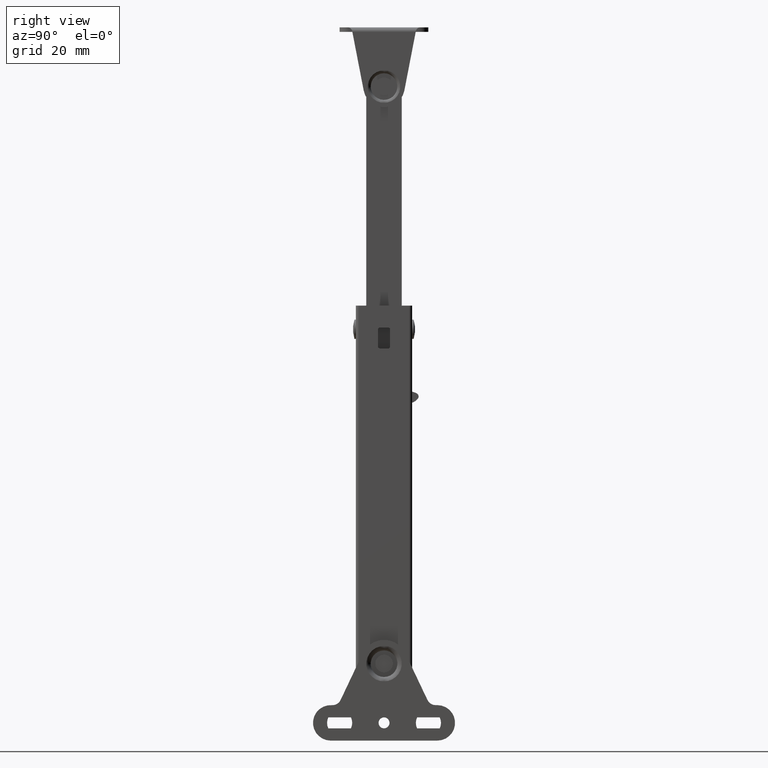
[diagram: clean part render]
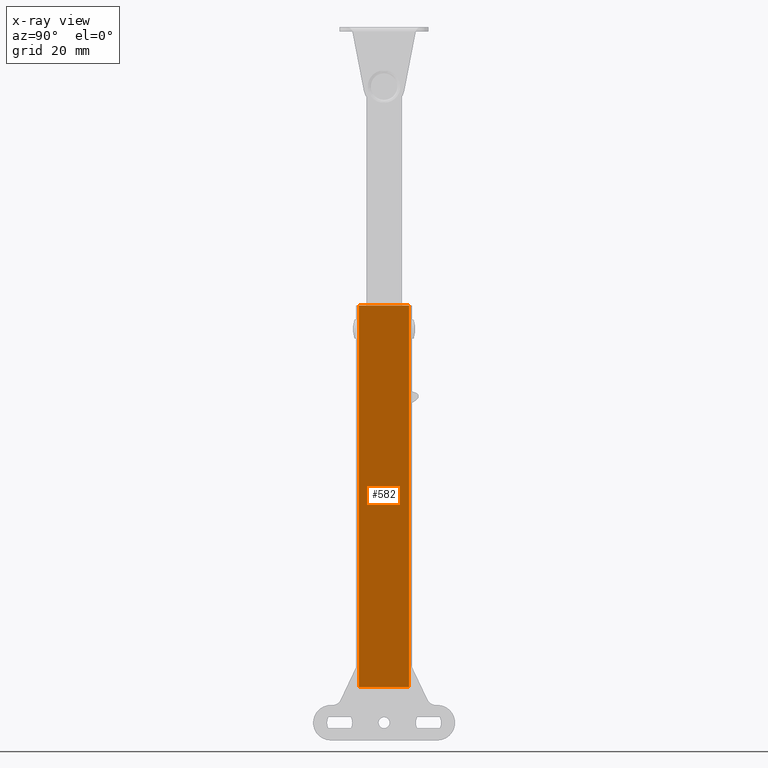
[diagram: x-ray — body ghosted, one internal face saturated and labeled with its STEP entity id]
A machine part, right view, then the same camera in x-ray: the body is ghosted and one INTERNAL B-rep face — a face not visible from any outside direction — is saturated and labeled: STEP entity #582.
In plain terms, the highlighted planar face has unit normal (1, 0, 0).
Its self-contained STEP definition (entity closure, byte-faithful):
#582=ADVANCED_FACE('',(#2305),#2304,.T.);
#2304=PLANE('',#3953);
#2305=FACE_OUTER_BOUND('',#3954,.T.);
#3950=CARTESIAN_POINT('',(-9.00000000000E+00,-1.02000000000E+01,1.31000000000E+02));
#3951=DIRECTION('',(1.00000000000E+00,0.00000000000E+00,0.00000000000E+00));
#3952=DIRECTION('',(0.00000000000E+00,0.00000000000E+00,-1.00000000000E+00));
#3953=AXIS2_PLACEMENT_3D('',#3950,#3951,#3952);
#3954=EDGE_LOOP('',(#4985,#4986,#4987,#4988));
#4985=ORIENTED_EDGE('',*,*,#5616,.F.);
#4986=ORIENTED_EDGE('',*,*,#5617,.F.);
#4987=ORIENTED_EDGE('',*,*,#5603,.T.);
#4988=ORIENTED_EDGE('',*,*,#5607,.T.);
#5603=EDGE_CURVE('',#8485,#8486,#8487,.T.);
#5607=EDGE_CURVE('',#8486,#8505,#8512,.T.);
#5616=EDGE_CURVE('',#8574,#8505,#8575,.T.);
#5617=EDGE_CURVE('',#8485,#8574,#8581,.T.);
#8485=VERTEX_POINT('',#10775);
#8486=VERTEX_POINT('',#10776);
#8487=LINE('',#10777,#10778);
#8505=VERTEX_POINT('',#10786);
#8512=LINE('',#10790,#10791);
#8574=VERTEX_POINT('',#10829);
#8575=LINE('',#10830,#10831);
#8581=LINE('',#10833,#10834);
#10775=CARTESIAN_POINT('',(-9.00000000000E+00,-8.50000000000E+00,-8.00000000000E+00));
#10776=CARTESIAN_POINT('',(-9.00000000000E+00,8.50000000000E+00,-8.00000000000E+00));
#10777=CARTESIAN_POINT('',(-9.00000000000E+00,-8.50000000000E+00,-8.00000000000E+00));
#10778=VECTOR('',#10779,1.70000000000E+01);
#10779=DIRECTION('',(0.00000000000E+00,1.00000000000E+00,0.00000000000E+00));
#10786=CARTESIAN_POINT('',(-9.00000000000E+00,8.50000000000E+00,1.21000000000E+02));
#10790=CARTESIAN_POINT('',(-9.00000000000E+00,8.50000000000E+00,-8.00000000000E+00));
#10791=VECTOR('',#10792,1.29000000000E+02);
#10792=DIRECTION('',(0.00000000000E+00,0.00000000000E+00,1.00000000000E+00));
#10829=CARTESIAN_POINT('',(-9.00000000000E+00,-8.50000000000E+00,1.21000000000E+02));
#10830=CARTESIAN_POINT('',(-9.00000000000E+00,-8.50000000000E+00,1.21000000000E+02));
#10831=VECTOR('',#10832,1.70000000000E+01);
#10832=DIRECTION('',(0.00000000000E+00,1.00000000000E+00,0.00000000000E+00));
#10833=CARTESIAN_POINT('',(-9.00000000000E+00,-8.50000000000E+00,-8.00000000000E+00));
#10834=VECTOR('',#10835,1.29000000000E+02);
#10835=DIRECTION('',(0.00000000000E+00,0.00000000000E+00,1.00000000000E+00));